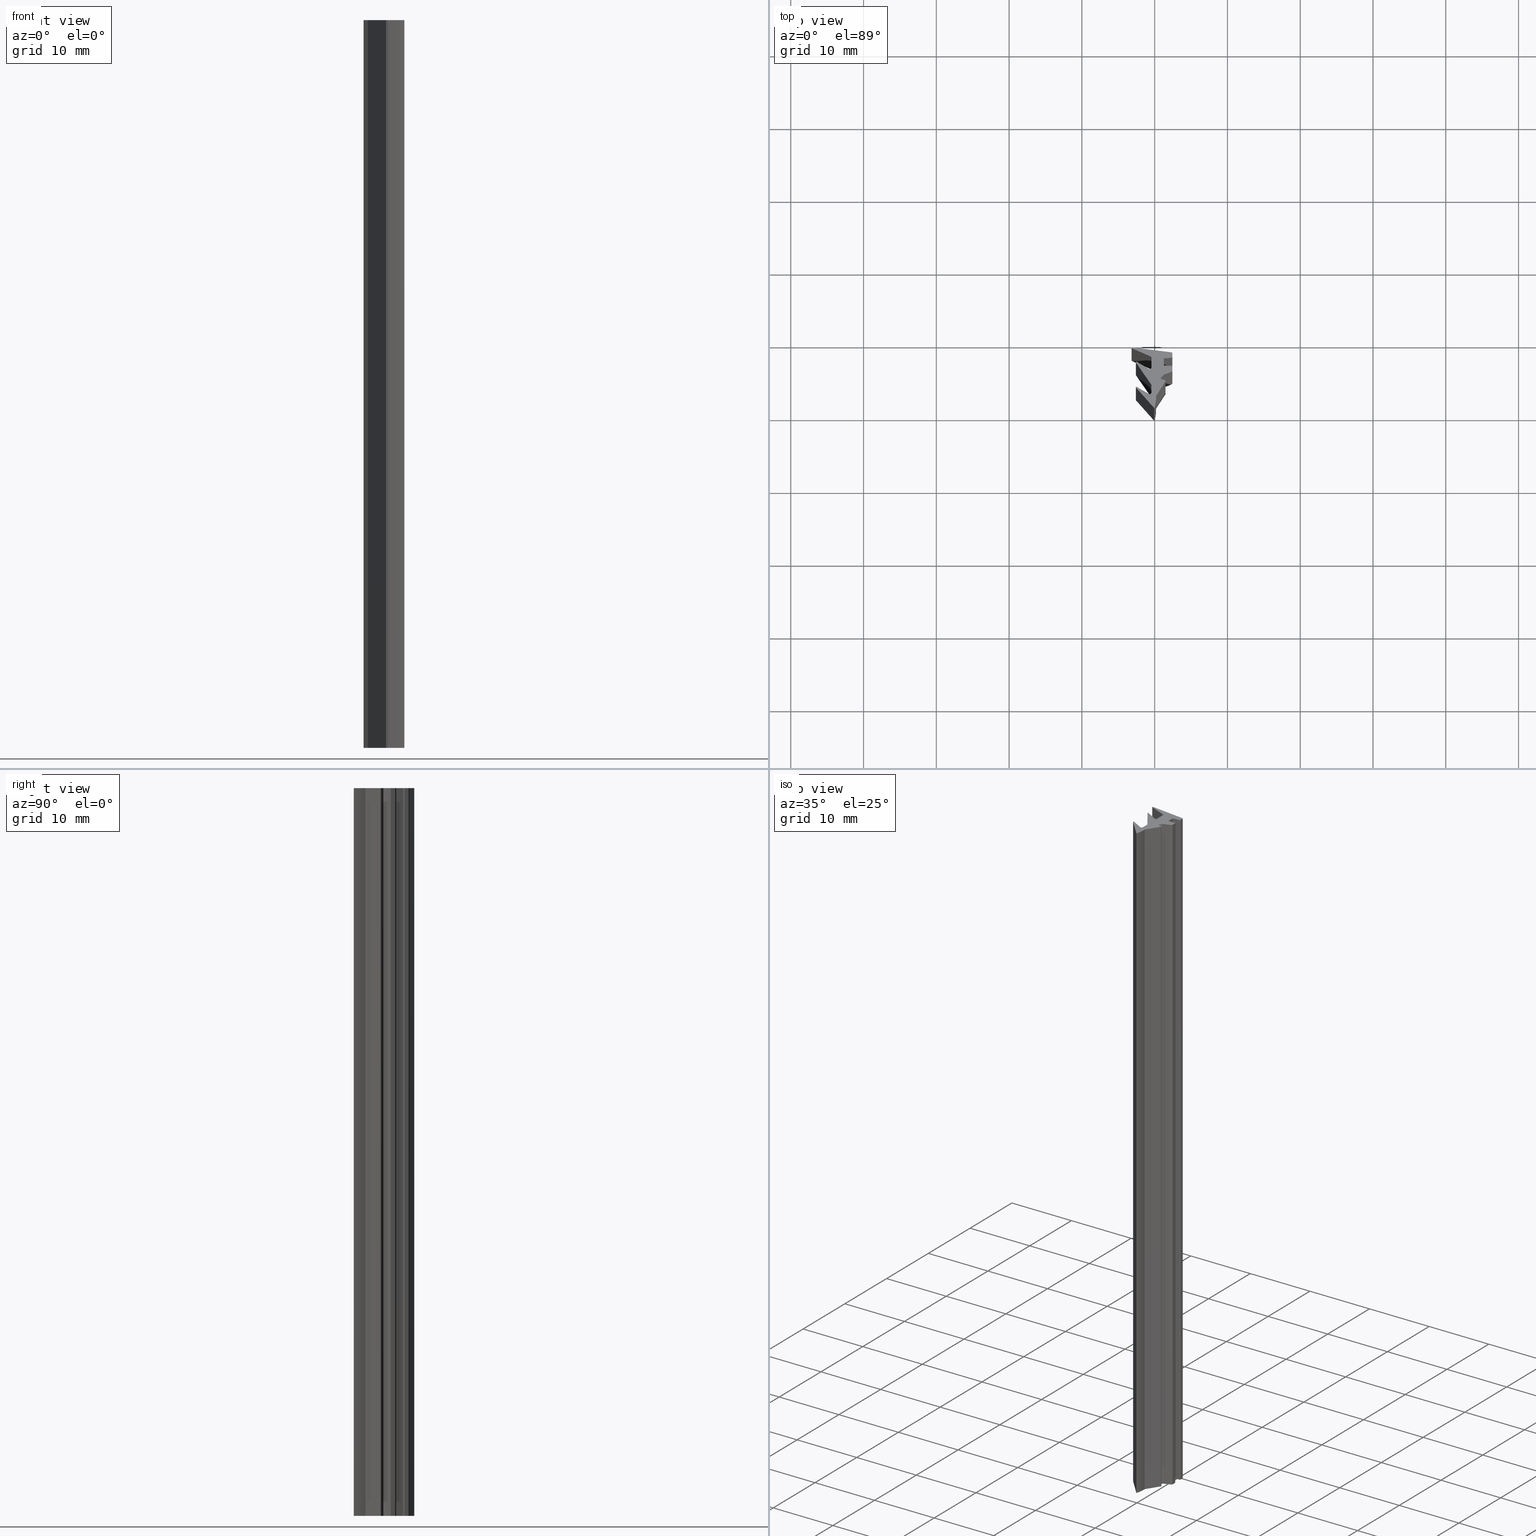
[diagram: canonical four-view strip — front | top / right | iso, engineering-drawing reading convention]
A machine part, canonical four-view strip (front | top / right | iso — engineering-drawing reading convention). The complete STEP part file that produces these views, byte-faithful:
ISO-10303-21;
HEADER;
/****************************************************************
 * Generated by software with PDE/Lib inside                    *
 * PDElib Version v4.4, created Mon 02/23/2004                  *
 * International Technegroup Inc. (www.iti-oh.com)              *
 ****************************************************************/
FILE_DESCRIPTION(('STEP AP203'),'2;1');
FILE_NAME('21.055.00N.stp','2011-09-08T18:04:21',(''),(''),'2009.3.110','THINKDESIGN','');
FILE_SCHEMA(('CONFIG_CONTROL_DESIGN'));
ENDSEC;
DATA;
#2=CARTESIAN_POINT('',(1.001719192064229,4.062080393543511,0.0));
#3=DIRECTION('',(0.0,0.0,-1.0));
#4=DIRECTION('',(-0.234478892111146,-0.972121211143101,0.0));
#5=AXIS2_PLACEMENT_3D('',#2,#3,#4);
#6=CYLINDRICAL_SURFACE('',#5,0.139999999999440);
#7=CARTESIAN_POINT('',(0.968892147168845,3.925983423983780,0.0));
#8=VERTEX_POINT('',#7);
#9=CARTESIAN_POINT('',(0.904405886683890,4.162728893759777,0.0));
#10=VERTEX_POINT('',#9);
#11=CARTESIAN_POINT('',(1.001719192064229,4.062080393543511,0.0));
#12=DIRECTION('',(0.0,0.0,-1.0));
#13=DIRECTION('',(1.0,0.0,0.0));
#14=AXIS2_PLACEMENT_3D('',#11,#12,#13);
#15=CIRCLE('',#14,0.139999999999440);
#16=EDGE_CURVE('',#8,#10,#15,.T.);
#17=ORIENTED_EDGE('',*,*,#16,.T.);
#18=CARTESIAN_POINT('',(0.904405886683890,4.162728893759777,100.0));
#19=VERTEX_POINT('',#18);
#20=CARTESIAN_POINT('',(0.904405886683890,4.162728893759777,0.0));
#21=DIRECTION('',(0.0,0.0,1.0));
#22=VECTOR('',#21,100.0);
#23=LINE('',#20,#22);
#24=EDGE_CURVE('',#10,#19,#23,.T.);
#25=ORIENTED_EDGE('',*,*,#24,.T.);
#26=CARTESIAN_POINT('',(0.968892147168845,3.925983423983780,100.0));
#27=VERTEX_POINT('',#26);
#28=CARTESIAN_POINT('',(1.001719192064229,4.062080393543511,100.0));
#29=DIRECTION('',(0.0,0.0,-1.0));
#30=DIRECTION('',(1.0,0.0,0.0));
#31=AXIS2_PLACEMENT_3D('',#28,#29,#30);
#32=CIRCLE('',#31,0.139999999999440);
#33=EDGE_CURVE('',#27,#19,#32,.T.);
#34=ORIENTED_EDGE('',*,*,#33,.F.);
#35=CARTESIAN_POINT('',(0.968892147168845,3.925983423983780,0.0));
#36=DIRECTION('',(0.0,0.0,1.0));
#37=VECTOR('',#36,100.0);
#38=LINE('',#35,#37);
#39=EDGE_CURVE('',#8,#27,#38,.T.);
#40=ORIENTED_EDGE('',*,*,#39,.F.);
#41=EDGE_LOOP('',(#17,#25,#34,#40));
#42=FACE_OUTER_BOUND('',#41,.T.);
#43=ADVANCED_FACE('',(#42),#6,.F.);
#44=CARTESIAN_POINT('',(-2.493065046091033,7.676640507121192,0.0));
#45=DIRECTION('',(0.0,0.0,1.0));
#46=DIRECTION('',(1.0,0.0,0.0));
#47=AXIS2_PLACEMENT_3D('',#44,#45,#46);
#48=CYLINDRICAL_SURFACE('',#47,4.887779001302095);
#49=CARTESIAN_POINT('',(1.272140242813293,4.559973585878652,0.0));
#50=VERTEX_POINT('',#49);
#51=CARTESIAN_POINT('',(-2.493065046091033,7.676640507121192,0.0));
#52=DIRECTION('',(0.0,0.0,1.0));
#53=DIRECTION('',(1.0,0.0,0.0));
#54=AXIS2_PLACEMENT_3D('',#51,#52,#53);
#55=CIRCLE('',#54,4.887779001302095);
#56=EDGE_CURVE('',#10,#50,#55,.T.);
#57=ORIENTED_EDGE('',*,*,#56,.T.);
#58=CARTESIAN_POINT('',(1.272140242813293,4.559973585878652,100.0));
#59=VERTEX_POINT('',#58);
#60=CARTESIAN_POINT('',(1.272140242813293,4.559973585878652,0.0));
#61=DIRECTION('',(0.0,0.0,1.0));
#62=VECTOR('',#61,100.0);
#63=LINE('',#60,#62);
#64=EDGE_CURVE('',#50,#59,#63,.T.);
#65=ORIENTED_EDGE('',*,*,#64,.T.);
#66=CARTESIAN_POINT('',(-2.493065046091033,7.676640507121192,100.0));
#67=DIRECTION('',(0.0,0.0,1.0));
#68=DIRECTION('',(1.0,0.0,0.0));
#69=AXIS2_PLACEMENT_3D('',#66,#67,#68);
#70=CIRCLE('',#69,4.887779001302095);
#71=EDGE_CURVE('',#19,#59,#70,.T.);
#72=ORIENTED_EDGE('',*,*,#71,.F.);
#73=ORIENTED_EDGE('',*,*,#24,.F.);
#74=EDGE_LOOP('',(#57,#65,#72,#73));
#75=FACE_OUTER_BOUND('',#74,.T.);
#76=ADVANCED_FACE('',(#75),#48,.T.);
#77=CARTESIAN_POINT('',(-0.615026702402702,11.178847048970965,0.0));
#78=DIRECTION('',(0.0,0.0,1.0));
#79=DIRECTION('',(1.0,0.0,0.0));
#80=AXIS2_PLACEMENT_3D('',#77,#78,#79);
#81=CYLINDRICAL_SURFACE('',#80,6.882651015382542);
#82=CARTESIAN_POINT('',(2.351141311599349,4.968152054668281,0.0));
#83=VERTEX_POINT('',#82);
#84=CARTESIAN_POINT('',(-0.615026702402702,11.178847048970965,0.0));
#85=DIRECTION('',(0.0,0.0,1.0));
#86=DIRECTION('',(1.0,0.0,0.0));
#87=AXIS2_PLACEMENT_3D('',#84,#85,#86);
#88=CIRCLE('',#87,6.882651015382542);
#89=EDGE_CURVE('',#50,#83,#88,.T.);
#90=ORIENTED_EDGE('',*,*,#89,.T.);
#91=CARTESIAN_POINT('',(2.351141311599349,4.968152054668281,100.0));
#92=VERTEX_POINT('',#91);
#93=CARTESIAN_POINT('',(2.351141311599349,4.968152054668281,0.0));
#94=DIRECTION('',(0.0,0.0,1.0));
#95=VECTOR('',#94,100.0);
#96=LINE('',#93,#95);
#97=EDGE_CURVE('',#83,#92,#96,.T.);
#98=ORIENTED_EDGE('',*,*,#97,.T.);
#99=CARTESIAN_POINT('',(-0.615026702402702,11.178847048970965,100.0));
#100=DIRECTION('',(0.0,0.0,1.0));
#101=DIRECTION('',(1.0,0.0,0.0));
#102=AXIS2_PLACEMENT_3D('',#99,#100,#101);
#103=CIRCLE('',#102,6.882651015382542);
#104=EDGE_CURVE('',#59,#92,#103,.T.);
#105=ORIENTED_EDGE('',*,*,#104,.F.);
#106=ORIENTED_EDGE('',*,*,#64,.F.);
#107=EDGE_LOOP('',(#90,#98,#105,#106));
#108=FACE_OUTER_BOUND('',#107,.T.);
#109=ADVANCED_FACE('',(#108),#81,.T.);
#110=CARTESIAN_POINT('',(2.290806489881561,5.094483797663088,0.0));
#111=DIRECTION('',(0.0,0.0,1.0));
#112=DIRECTION('',(0.430963012271300,-0.902369592824386,0.0));
#113=AXIS2_PLACEMENT_3D('',#110,#111,#112);
#114=CYLINDRICAL_SURFACE('',#113,0.139999999999440);
#115=CARTESIAN_POINT('',(2.430806489880979,5.094483797663088,0.0));
#116=VERTEX_POINT('',#115);
#117=CARTESIAN_POINT('',(2.290806489881561,5.094483797663088,0.0));
#118=DIRECTION('',(0.0,0.0,1.0));
#119=DIRECTION('',(1.0,0.0,0.0));
#120=AXIS2_PLACEMENT_3D('',#117,#118,#119);
#121=CIRCLE('',#120,0.139999999999440);
#122=EDGE_CURVE('',#83,#116,#121,.T.);
#123=ORIENTED_EDGE('',*,*,#122,.T.);
#124=CARTESIAN_POINT('',(2.430806489880979,5.094483797663088,100.0));
#125=VERTEX_POINT('',#124);
#126=CARTESIAN_POINT('',(2.430806489880979,5.094483797663088,0.0));
#127=DIRECTION('',(0.0,0.0,1.0));
#128=VECTOR('',#127,100.0);
#129=LINE('',#126,#128);
#130=EDGE_CURVE('',#116,#125,#129,.T.);
#131=ORIENTED_EDGE('',*,*,#130,.T.);
#132=CARTESIAN_POINT('',(2.290806489881561,5.094483797663088,100.0));
#133=DIRECTION('',(0.0,0.0,1.0));
#134=DIRECTION('',(1.0,0.0,0.0));
#135=AXIS2_PLACEMENT_3D('',#132,#133,#134);
#136=CIRCLE('',#135,0.139999999999440);
#137=EDGE_CURVE('',#92,#125,#136,.T.);
#138=ORIENTED_EDGE('',*,*,#137,.F.);
#139=ORIENTED_EDGE('',*,*,#97,.F.);
#140=EDGE_LOOP('',(#123,#131,#138,#139));
#141=FACE_OUTER_BOUND('',#140,.T.);
#142=ADVANCED_FACE('',(#141),#114,.T.);
#143=CARTESIAN_POINT('',(2.430806489880979,5.094483797663088,0.0));
#144=DIRECTION('',(1.0,0.0,0.0));
#145=DIRECTION('',(0.0,1.0,0.0));
#146=AXIS2_PLACEMENT_3D('',#143,#144,#145);
#147=PLANE('',#146);
#148=CARTESIAN_POINT('',(2.430806489880524,5.629802627999197,0.0));
#149=VERTEX_POINT('',#148);
#150=CARTESIAN_POINT('',(2.430806489880979,5.094483797663088,0.0));
#151=DIRECTION('',(0.0,1.0,0.0));
#152=VECTOR('',#151,0.535318830336088);
#153=LINE('',#150,#152);
#154=EDGE_CURVE('',#116,#149,#153,.T.);
#155=ORIENTED_EDGE('',*,*,#154,.T.);
#156=CARTESIAN_POINT('',(2.430806489880524,5.629802627999197,100.0));
#157=VERTEX_POINT('',#156);
#158=CARTESIAN_POINT('',(2.430806489880524,5.629802627999197,0.0));
#159=DIRECTION('',(0.0,0.0,1.0));
#160=VECTOR('',#159,100.0);
#161=LINE('',#158,#160);
#162=EDGE_CURVE('',#149,#157,#161,.T.);
#163=ORIENTED_EDGE('',*,*,#162,.T.);
#164=CARTESIAN_POINT('',(2.430806489880979,5.094483797663088,100.0));
#165=DIRECTION('',(0.0,1.0,0.0));
#166=VECTOR('',#165,0.535318830336088);
#167=LINE('',#164,#166);
#168=EDGE_CURVE('',#125,#157,#167,.T.);
#169=ORIENTED_EDGE('',*,*,#168,.F.);
#170=ORIENTED_EDGE('',*,*,#130,.F.);
#171=EDGE_LOOP('',(#155,#163,#169,#170));
#172=FACE_OUTER_BOUND('',#171,.T.);
#173=ADVANCED_FACE('',(#172),#147,.T.);
#174=CARTESIAN_POINT('',(2.288606489881204,5.629802627999197,0.0));
#175=DIRECTION('',(0.0,0.0,1.0));
#176=DIRECTION('',(1.0,0.0,0.0));
#177=AXIS2_PLACEMENT_3D('',#174,#175,#176);
#178=CYLINDRICAL_SURFACE('',#177,0.142199999999430);
#179=CARTESIAN_POINT('',(2.288606489881204,5.772002627998518,0.0));
#180=VERTEX_POINT('',#179);
#181=CARTESIAN_POINT('',(2.288606489881204,5.629802627999197,0.0));
#182=DIRECTION('',(0.0,0.0,1.0));
#183=DIRECTION('',(1.0,0.0,0.0));
#184=AXIS2_PLACEMENT_3D('',#181,#182,#183);
#185=CIRCLE('',#184,0.142199999999430);
#186=EDGE_CURVE('',#149,#180,#185,.T.);
#187=ORIENTED_EDGE('',*,*,#186,.T.);
#188=CARTESIAN_POINT('',(2.288606489881204,5.772002627998518,100.0));
#189=VERTEX_POINT('',#188);
#190=CARTESIAN_POINT('',(2.288606489881204,5.772002627998518,0.0));
#191=DIRECTION('',(0.0,0.0,1.0));
#192=VECTOR('',#191,100.0);
#193=LINE('',#190,#192);
#194=EDGE_CURVE('',#180,#189,#193,.T.);
#195=ORIENTED_EDGE('',*,*,#194,.T.);
#196=CARTESIAN_POINT('',(2.288606489881204,5.629802627999197,100.0));
#197=DIRECTION('',(0.0,0.0,1.0));
#198=DIRECTION('',(1.0,0.0,0.0));
#199=AXIS2_PLACEMENT_3D('',#196,#197,#198);
#200=CIRCLE('',#199,0.142199999999430);
#201=EDGE_CURVE('',#157,#189,#200,.T.);
#202=ORIENTED_EDGE('',*,*,#201,.F.);
#203=ORIENTED_EDGE('',*,*,#162,.F.);
#204=EDGE_LOOP('',(#187,#195,#202,#203));
#205=FACE_OUTER_BOUND('',#204,.T.);
#206=ADVANCED_FACE('',(#205),#178,.T.);
#207=CARTESIAN_POINT('',(2.288606489881204,5.772002627998518,0.0));
#208=DIRECTION('',(0.0,1.0,0.0));
#209=DIRECTION('',(-1.0,0.0,0.0));
#210=AXIS2_PLACEMENT_3D('',#207,#208,#209);
#211=PLANE('',#210);
#212=CARTESIAN_POINT('',(1.336219787783648,5.772002627997608,0.0));
#213=VERTEX_POINT('',#212);
#214=CARTESIAN_POINT('',(2.288606489881204,5.772002627998518,0.0));
#215=DIRECTION('',(-1.0,0.0,0.0));
#216=VECTOR('',#215,0.952386702097839);
#217=LINE('',#214,#216);
#218=EDGE_CURVE('',#180,#213,#217,.T.);
#219=ORIENTED_EDGE('',*,*,#218,.T.);
#220=CARTESIAN_POINT('',(1.336219787783648,5.772002627997608,100.0));
#221=VERTEX_POINT('',#220);
#222=CARTESIAN_POINT('',(1.336219787783648,5.772002627997608,0.0));
#223=DIRECTION('',(0.0,0.0,1.0));
#224=VECTOR('',#223,100.0);
#225=LINE('',#222,#224);
#226=EDGE_CURVE('',#213,#221,#225,.T.);
#227=ORIENTED_EDGE('',*,*,#226,.T.);
#228=CARTESIAN_POINT('',(2.288606489881204,5.772002627998518,100.0));
#229=DIRECTION('',(-1.0,0.0,0.0));
#230=VECTOR('',#229,0.952386702097839);
#231=LINE('',#228,#230);
#232=EDGE_CURVE('',#189,#221,#231,.T.);
#233=ORIENTED_EDGE('',*,*,#232,.F.);
#234=ORIENTED_EDGE('',*,*,#194,.F.);
#235=EDGE_LOOP('',(#219,#227,#233,#234));
#236=FACE_OUTER_BOUND('',#235,.T.);
#237=ADVANCED_FACE('',(#236),#211,.T.);
#238=CARTESIAN_POINT('',(1.336219787783648,5.843102627997723,0.0));
#239=DIRECTION('',(0.0,0.0,-1.0));
#240=DIRECTION('',(-1.960054E-015,-1.0,0.0));
#241=AXIS2_PLACEMENT_3D('',#238,#239,#240);
#242=CYLINDRICAL_SURFACE('',#241,0.071099999999716);
#243=CARTESIAN_POINT('',(1.265119787783988,5.843102627997723,0.0));
#244=VERTEX_POINT('',#243);
#245=CARTESIAN_POINT('',(1.336219787783648,5.843102627997723,0.0));
#246=DIRECTION('',(0.0,0.0,-1.0));
#247=DIRECTION('',(1.0,0.0,0.0));
#248=AXIS2_PLACEMENT_3D('',#245,#246,#247);
#249=CIRCLE('',#248,0.071099999999716);
#250=EDGE_CURVE('',#213,#244,#249,.T.);
#251=ORIENTED_EDGE('',*,*,#250,.T.);
#252=CARTESIAN_POINT('',(1.265119787783988,5.843102627997723,100.0));
#253=VERTEX_POINT('',#252);
#254=CARTESIAN_POINT('',(1.265119787783988,5.843102627997723,0.0));
#255=DIRECTION('',(0.0,0.0,1.0));
#256=VECTOR('',#255,100.0);
#257=LINE('',#254,#256);
#258=EDGE_CURVE('',#244,#253,#257,.T.);
#259=ORIENTED_EDGE('',*,*,#258,.T.);
#260=CARTESIAN_POINT('',(1.336219787783648,5.843102627997723,100.0));
#261=DIRECTION('',(0.0,0.0,-1.0));
#262=DIRECTION('',(1.0,0.0,0.0));
#263=AXIS2_PLACEMENT_3D('',#260,#261,#262);
#264=CIRCLE('',#263,0.071099999999716);
#265=EDGE_CURVE('',#221,#253,#264,.T.);
#266=ORIENTED_EDGE('',*,*,#265,.F.);
#267=ORIENTED_EDGE('',*,*,#226,.F.);
#268=EDGE_LOOP('',(#251,#259,#266,#267));
#269=FACE_OUTER_BOUND('',#268,.T.);
#270=ADVANCED_FACE('',(#269),#242,.F.);
#271=CARTESIAN_POINT('',(1.265119787783988,5.843102627997723,0.0));
#272=DIRECTION('',(1.0,0.0,0.0));
#273=DIRECTION('',(0.0,1.0,0.0));
#274=AXIS2_PLACEMENT_3D('',#271,#272,#273);
#275=PLANE('',#274);
#276=CARTESIAN_POINT('',(1.265119787783988,6.721160921344563,0.0));
#277=VERTEX_POINT('',#276);
#278=CARTESIAN_POINT('',(1.265119787783988,5.843102627997723,0.0));
#279=DIRECTION('',(0.0,1.0,0.0));
#280=VECTOR('',#279,0.878058293346944);
#281=LINE('',#278,#280);
#282=EDGE_CURVE('',#244,#277,#281,.T.);
#283=ORIENTED_EDGE('',*,*,#282,.T.);
#284=CARTESIAN_POINT('',(1.265119787783988,6.721160921344563,100.0));
#285=VERTEX_POINT('',#284);
#286=CARTESIAN_POINT('',(1.265119787783988,6.721160921344563,0.0));
#287=DIRECTION('',(0.0,0.0,1.0));
#288=VECTOR('',#287,100.0);
#289=LINE('',#286,#288);
#290=EDGE_CURVE('',#277,#285,#289,.T.);
#291=ORIENTED_EDGE('',*,*,#290,.T.);
#292=CARTESIAN_POINT('',(1.265119787783988,5.843102627997723,100.0));
#293=DIRECTION('',(0.0,1.0,0.0));
#294=VECTOR('',#293,0.878058293346944);
#295=LINE('',#292,#294);
#296=EDGE_CURVE('',#253,#285,#295,.T.);
#297=ORIENTED_EDGE('',*,*,#296,.F.);
#298=ORIENTED_EDGE('',*,*,#258,.F.);
#299=EDGE_LOOP('',(#283,#291,#297,#298));
#300=FACE_OUTER_BOUND('',#299,.T.);
#301=ADVANCED_FACE('',(#300),#275,.T.);
#302=CARTESIAN_POINT('',(1.336219787783648,6.721160921344563,0.0));
#303=DIRECTION('',(0.0,0.0,-1.0));
#304=DIRECTION('',(-1.0,1.010643E-015,0.0));
#305=AXIS2_PLACEMENT_3D('',#302,#303,#304);
#306=CYLINDRICAL_SURFACE('',#305,0.071099999999715);
#307=CARTESIAN_POINT('',(1.325025252549949,6.791374113701750,0.0));
#308=VERTEX_POINT('',#307);
#309=CARTESIAN_POINT('',(1.336219787783648,6.721160921344563,0.0));
#310=DIRECTION('',(0.0,0.0,-1.0));
#311=DIRECTION('',(1.0,0.0,0.0));
#312=AXIS2_PLACEMENT_3D('',#309,#310,#311);
#313=CIRCLE('',#312,0.071099999999715);
#314=EDGE_CURVE('',#277,#308,#313,.T.);
#315=ORIENTED_EDGE('',*,*,#314,.T.);
#316=CARTESIAN_POINT('',(1.325025252549949,6.791374113701750,100.0));
#317=VERTEX_POINT('',#316);
#318=CARTESIAN_POINT('',(1.325025252549949,6.791374113701750,0.0));
#319=DIRECTION('',(0.0,0.0,1.0));
#320=VECTOR('',#319,100.0);
#321=LINE('',#318,#320);
#322=EDGE_CURVE('',#308,#317,#321,.T.);
#323=ORIENTED_EDGE('',*,*,#322,.T.);
#324=CARTESIAN_POINT('',(1.336219787783648,6.721160921344563,100.0));
#325=DIRECTION('',(0.0,0.0,-1.0));
#326=DIRECTION('',(1.0,0.0,0.0));
#327=AXIS2_PLACEMENT_3D('',#324,#325,#326);
#328=CIRCLE('',#327,0.071099999999715);
#329=EDGE_CURVE('',#285,#317,#328,.T.);
#330=ORIENTED_EDGE('',*,*,#329,.F.);
#331=ORIENTED_EDGE('',*,*,#290,.F.);
#332=EDGE_LOOP('',(#315,#323,#330,#331));
#333=FACE_OUTER_BOUND('',#332,.T.);
#334=ADVANCED_FACE('',(#333),#306,.F.);
#335=CARTESIAN_POINT('',(1.325025252549949,6.791374113701750,0.0));
#336=DIRECTION('',(0.084886722349870,-0.996390608330235,0.0));
#337=DIRECTION('',(0.996390608330235,0.084886722349870,0.0));
#338=AXIS2_PLACEMENT_3D('',#335,#336,#337);
#339=PLANE('',#338);
#340=CARTESIAN_POINT('',(2.310995560348147,6.875373086658328,0.0));
#341=VERTEX_POINT('',#340);
#342=CARTESIAN_POINT('',(1.325025252549949,6.791374113701750,0.0));
#343=DIRECTION('',(0.996390608330210,0.084886722350166,0.0));
#344=VECTOR('',#343,0.989541952277943);
#345=LINE('',#342,#344);
#346=EDGE_CURVE('',#308,#341,#345,.T.);
#347=ORIENTED_EDGE('',*,*,#346,.T.);
#348=CARTESIAN_POINT('',(2.310995560348147,6.875373086658328,100.0));
#349=VERTEX_POINT('',#348);
#350=CARTESIAN_POINT('',(2.310995560348147,6.875373086658328,0.0));
#351=DIRECTION('',(0.0,0.0,1.0));
#352=VECTOR('',#351,100.0);
#353=LINE('',#350,#352);
#354=EDGE_CURVE('',#341,#349,#353,.T.);
#355=ORIENTED_EDGE('',*,*,#354,.T.);
#356=CARTESIAN_POINT('',(1.325025252549949,6.791374113701750,100.0));
#357=DIRECTION('',(0.996390608330210,0.084886722350166,0.0));
#358=VECTOR('',#357,0.989541952277943);
#359=LINE('',#356,#358);
#360=EDGE_CURVE('',#317,#349,#359,.T.);
#361=ORIENTED_EDGE('',*,*,#360,.F.);
#362=ORIENTED_EDGE('',*,*,#322,.F.);
#363=EDGE_LOOP('',(#347,#355,#361,#362));
#364=FACE_OUTER_BOUND('',#363,.T.);
#365=ADVANCED_FACE('',(#364),#339,.T.);
#366=CARTESIAN_POINT('',(2.288606489881204,7.015799471370883,0.0));
#367=DIRECTION('',(0.0,0.0,1.0));
#368=DIRECTION('',(0.157447752933772,-0.987527318658125,0.0));
#369=AXIS2_PLACEMENT_3D('',#366,#367,#368);
#370=CYLINDRICAL_SURFACE('',#369,0.142199999999430);
#371=CARTESIAN_POINT('',(2.430806489880979,7.015799471370883,0.0));
#372=VERTEX_POINT('',#371);
#373=CARTESIAN_POINT('',(2.288606489881204,7.015799471370883,0.0));
#374=DIRECTION('',(0.0,0.0,1.0));
#375=DIRECTION('',(1.0,0.0,0.0));
#376=AXIS2_PLACEMENT_3D('',#373,#374,#375);
#377=CIRCLE('',#376,0.142199999999430);
#378=EDGE_CURVE('',#341,#372,#377,.T.);
#379=ORIENTED_EDGE('',*,*,#378,.T.);
#380=CARTESIAN_POINT('',(2.430806489880979,7.015799471370883,100.0));
#381=VERTEX_POINT('',#380);
#382=CARTESIAN_POINT('',(2.430806489880979,7.015799471370883,0.0));
#383=DIRECTION('',(0.0,0.0,1.0));
#384=VECTOR('',#383,100.0);
#385=LINE('',#382,#384);
#386=EDGE_CURVE('',#372,#381,#385,.T.);
#387=ORIENTED_EDGE('',*,*,#386,.T.);
#388=CARTESIAN_POINT('',(2.288606489881204,7.015799471370883,100.0));
#389=DIRECTION('',(0.0,0.0,1.0));
#390=DIRECTION('',(1.0,0.0,0.0));
#391=AXIS2_PLACEMENT_3D('',#388,#389,#390);
#392=CIRCLE('',#391,0.142199999999430);
#393=EDGE_CURVE('',#349,#381,#392,.T.);
#394=ORIENTED_EDGE('',*,*,#393,.F.);
#395=ORIENTED_EDGE('',*,*,#354,.F.);
#396=EDGE_LOOP('',(#379,#387,#394,#395));
#397=FACE_OUTER_BOUND('',#396,.T.);
#398=ADVANCED_FACE('',(#397),#370,.T.);
#399=CARTESIAN_POINT('',(2.430806489880979,7.015799471370883,0.0));
#400=DIRECTION('',(1.0,0.0,0.0));
#401=DIRECTION('',(0.0,1.0,0.0));
#402=AXIS2_PLACEMENT_3D('',#399,#400,#401);
#403=PLANE('',#402);
#404=CARTESIAN_POINT('',(2.430806489880524,7.479009992664032,0.0));
#405=VERTEX_POINT('',#404);
#406=CARTESIAN_POINT('',(2.430806489880979,7.015799471370883,0.0));
#407=DIRECTION('',(0.0,1.0,0.0));
#408=VECTOR('',#407,0.463210521293123);
#409=LINE('',#406,#408);
#410=EDGE_CURVE('',#372,#405,#409,.T.);
#411=ORIENTED_EDGE('',*,*,#410,.T.);
#412=CARTESIAN_POINT('',(2.430806489880524,7.479009992664032,100.0));
#413=VERTEX_POINT('',#412);
#414=CARTESIAN_POINT('',(2.430806489880524,7.479009992664032,0.0));
#415=DIRECTION('',(0.0,0.0,1.0));
#416=VECTOR('',#415,100.0);
#417=LINE('',#414,#416);
#418=EDGE_CURVE('',#405,#413,#417,.T.);
#419=ORIENTED_EDGE('',*,*,#418,.T.);
#420=CARTESIAN_POINT('',(2.430806489880979,7.015799471370883,100.0));
#421=DIRECTION('',(0.0,1.0,0.0));
#422=VECTOR('',#421,0.463210521293123);
#423=LINE('',#420,#422);
#424=EDGE_CURVE('',#381,#413,#423,.T.);
#425=ORIENTED_EDGE('',*,*,#424,.F.);
#426=ORIENTED_EDGE('',*,*,#386,.F.);
#427=EDGE_LOOP('',(#411,#419,#425,#426));
#428=FACE_OUTER_BOUND('',#427,.T.);
#429=ADVANCED_FACE('',(#428),#403,.T.);
#430=CARTESIAN_POINT('',(2.288606489881204,7.479009992664032,0.0));
#431=DIRECTION('',(0.0,0.0,1.0));
#432=DIRECTION('',(1.0,0.0,0.0));
#433=AXIS2_PLACEMENT_3D('',#430,#431,#432);
#434=CYLINDRICAL_SURFACE('',#433,0.142199999999433);
#435=CARTESIAN_POINT('',(2.305205762880178,7.620237837424611,0.0));
#436=VERTEX_POINT('',#435);
#437=CARTESIAN_POINT('',(2.288606489881204,7.479009992664032,0.0));
#438=DIRECTION('',(0.0,0.0,1.0));
#439=DIRECTION('',(1.0,0.0,0.0));
#440=AXIS2_PLACEMENT_3D('',#437,#438,#439);
#441=CIRCLE('',#440,0.142199999999433);
#442=EDGE_CURVE('',#405,#436,#441,.T.);
#443=ORIENTED_EDGE('',*,*,#442,.T.);
#444=CARTESIAN_POINT('',(2.305205762880178,7.620237837424611,100.0));
#445=VERTEX_POINT('',#444);
#446=CARTESIAN_POINT('',(2.305205762880178,7.620237837424611,0.0));
#447=DIRECTION('',(0.0,0.0,1.0));
#448=VECTOR('',#447,100.0);
#449=LINE('',#446,#448);
#450=EDGE_CURVE('',#436,#445,#449,.T.);
#451=ORIENTED_EDGE('',*,*,#450,.T.);
#452=CARTESIAN_POINT('',(2.288606489881204,7.479009992664032,100.0));
#453=DIRECTION('',(0.0,0.0,1.0));
#454=DIRECTION('',(1.0,0.0,0.0));
#455=AXIS2_PLACEMENT_3D('',#452,#453,#454);
#456=CIRCLE('',#455,0.142199999999433);
#457=EDGE_CURVE('',#413,#445,#456,.T.);
#458=ORIENTED_EDGE('',*,*,#457,.F.);
#459=ORIENTED_EDGE('',*,*,#418,.F.);
#460=EDGE_LOOP('',(#443,#451,#458,#459));
#461=FACE_OUTER_BOUND('',#460,.T.);
#462=ADVANCED_FACE('',(#461),#434,.T.);
#463=CARTESIAN_POINT('',(2.305205762880178,7.620237837424611,0.0));
#464=DIRECTION('',(0.125261887887571,0.992123711763226,0.0));
#465=DIRECTION('',(-0.992123711763226,0.125261887887571,0.0));
#466=AXIS2_PLACEMENT_3D('',#463,#464,#465);
#467=PLANE('',#466);
#468=CARTESIAN_POINT('',(-3.085766503641480,8.300882151886071,0.0));
#469=VERTEX_POINT('',#468);
#470=CARTESIAN_POINT('',(2.305205762880178,7.620237837424611,0.0));
#471=DIRECTION('',(-0.992123711763219,0.125261887887631,0.0));
#472=VECTOR('',#471,5.433770206883430);
#473=LINE('',#470,#472);
#474=EDGE_CURVE('',#436,#469,#473,.T.);
#475=ORIENTED_EDGE('',*,*,#474,.T.);
#476=CARTESIAN_POINT('',(-3.085766503641480,8.300882151886071,100.0));
#477=VERTEX_POINT('',#476);
#478=CARTESIAN_POINT('',(-3.085766503641480,8.300882151886071,0.0));
#479=DIRECTION('',(0.0,0.0,1.0));
#480=VECTOR('',#479,100.0);
#481=LINE('',#478,#480);
#482=EDGE_CURVE('',#469,#477,#481,.T.);
#483=ORIENTED_EDGE('',*,*,#482,.T.);
#484=CARTESIAN_POINT('',(2.305205762880178,7.620237837424611,100.0));
#485=DIRECTION('',(-0.992123711763219,0.125261887887631,0.0));
#486=VECTOR('',#485,5.433770206883430);
#487=LINE('',#484,#486);
#488=EDGE_CURVE('',#445,#477,#487,.T.);
#489=ORIENTED_EDGE('',*,*,#488,.F.);
#490=ORIENTED_EDGE('',*,*,#450,.F.);
#491=EDGE_LOOP('',(#475,#483,#489,#490));
#492=FACE_OUTER_BOUND('',#491,.T.);
#493=ADVANCED_FACE('',(#492),#467,.T.);
#494=CARTESIAN_POINT('',(-3.094066140140967,8.230268229505782,0.0));
#495=DIRECTION('',(0.0,0.0,1.0));
#496=DIRECTION('',(1.0,0.0,0.0));
#497=AXIS2_PLACEMENT_3D('',#494,#495,#496);
#498=CYLINDRICAL_SURFACE('',#497,0.071099999999714);
#499=CARTESIAN_POINT('',(-3.122255835029137,8.164995332358558,0.0));
#500=VERTEX_POINT('',#499);
#501=CARTESIAN_POINT('',(-3.094066140140967,8.230268229505782,0.0));
#502=DIRECTION('',(0.0,0.0,1.0));
#503=DIRECTION('',(1.0,0.0,0.0));
#504=AXIS2_PLACEMENT_3D('',#501,#502,#503);
#505=CIRCLE('',#504,0.071099999999714);
#506=EDGE_CURVE('',#469,#500,#505,.T.);
#507=ORIENTED_EDGE('',*,*,#506,.T.);
#508=CARTESIAN_POINT('',(-3.122255835029137,8.164995332358558,100.0));
#509=VERTEX_POINT('',#508);
#510=CARTESIAN_POINT('',(-3.122255835029137,8.164995332358558,0.0));
#511=DIRECTION('',(0.0,0.0,1.0));
#512=VECTOR('',#511,100.0);
#513=LINE('',#510,#512);
#514=EDGE_CURVE('',#500,#509,#513,.T.);
#515=ORIENTED_EDGE('',*,*,#514,.T.);
#516=CARTESIAN_POINT('',(-3.094066140140967,8.230268229505782,100.0));
#517=DIRECTION('',(0.0,0.0,1.0));
#518=DIRECTION('',(1.0,0.0,0.0));
#519=AXIS2_PLACEMENT_3D('',#516,#517,#518);
#520=CIRCLE('',#519,0.071099999999714);
#521=EDGE_CURVE('',#477,#509,#520,.T.);
#522=ORIENTED_EDGE('',*,*,#521,.F.);
#523=ORIENTED_EDGE('',*,*,#482,.F.);
#524=EDGE_LOOP('',(#507,#515,#522,#523));
#525=FACE_OUTER_BOUND('',#524,.T.);
#526=ADVANCED_FACE('',(#525),#498,.T.);
#527=CARTESIAN_POINT('',(-3.122255835029137,8.164995332358558,0.0));
#528=DIRECTION('',(-0.396479534292955,-0.918043560451704,0.0));
#529=DIRECTION('',(0.918043560451704,-0.396479534292955,0.0));
#530=AXIS2_PLACEMENT_3D('',#527,#528,#529);
#531=PLANE('',#530);
#532=CARTESIAN_POINT('',(-0.584047430339979,7.068808038440693,0.0));
#533=VERTEX_POINT('',#532);
#534=CARTESIAN_POINT('',(-3.122255835029137,8.164995332358558,0.0));
#535=DIRECTION('',(0.918043560451679,-0.396479534293014,0.0));
#536=VECTOR('',#535,2.764801708798919);
#537=LINE('',#534,#536);
#538=EDGE_CURVE('',#500,#533,#537,.T.);
#539=ORIENTED_EDGE('',*,*,#538,.T.);
#540=CARTESIAN_POINT('',(-0.584047430339979,7.068808038440693,100.0));
#541=VERTEX_POINT('',#540);
#542=CARTESIAN_POINT('',(-0.584047430339979,7.068808038440693,0.0));
#543=DIRECTION('',(0.0,0.0,1.0));
#544=VECTOR('',#543,100.0);
#545=LINE('',#542,#544);
#546=EDGE_CURVE('',#533,#541,#545,.T.);
#547=ORIENTED_EDGE('',*,*,#546,.T.);
#548=CARTESIAN_POINT('',(-3.122255835029137,8.164995332358558,100.0));
#549=DIRECTION('',(0.918043560451679,-0.396479534293014,0.0));
#550=VECTOR('',#549,2.764801708798919);
#551=LINE('',#548,#550);
#552=EDGE_CURVE('',#509,#541,#551,.T.);
#553=ORIENTED_EDGE('',*,*,#552,.F.);
#554=ORIENTED_EDGE('',*,*,#514,.F.);
#555=EDGE_LOOP('',(#539,#547,#553,#554));
#556=FACE_OUTER_BOUND('',#555,.T.);
#557=ADVANCED_FACE('',(#556),#531,.T.);
#558=CARTESIAN_POINT('',(-0.668616515004487,6.872989346997201,0.0));
#559=DIRECTION('',(0.0,0.0,-1.0));
#560=DIRECTION('',(0.396479534293017,0.918043560451677,0.0));
#561=AXIS2_PLACEMENT_3D('',#558,#559,#560);
#562=CYLINDRICAL_SURFACE('',#561,0.213299999999147);
#563=CARTESIAN_POINT('',(-0.455316515005507,6.872989346997201,0.0));
#564=VERTEX_POINT('',#563);
#565=CARTESIAN_POINT('',(-0.668616515004487,6.872989346997201,0.0));
#566=DIRECTION('',(0.0,0.0,-1.0));
#567=DIRECTION('',(1.0,0.0,0.0));
#568=AXIS2_PLACEMENT_3D('',#565,#566,#567);
#569=CIRCLE('',#568,0.213299999999147);
#570=EDGE_CURVE('',#533,#564,#569,.T.);
#571=ORIENTED_EDGE('',*,*,#570,.T.);
#572=CARTESIAN_POINT('',(-0.455316515005507,6.872989346997201,100.0));
#573=VERTEX_POINT('',#572);
#574=CARTESIAN_POINT('',(-0.455316515005507,6.872989346997201,0.0));
#575=DIRECTION('',(0.0,0.0,1.0));
#576=VECTOR('',#575,100.0);
#577=LINE('',#574,#576);
#578=EDGE_CURVE('',#564,#573,#577,.T.);
#579=ORIENTED_EDGE('',*,*,#578,.T.);
#580=CARTESIAN_POINT('',(-0.668616515004487,6.872989346997201,100.0));
#581=DIRECTION('',(0.0,0.0,-1.0));
#582=DIRECTION('',(1.0,0.0,0.0));
#583=AXIS2_PLACEMENT_3D('',#580,#581,#582);
#584=CIRCLE('',#583,0.213299999999147);
#585=EDGE_CURVE('',#541,#573,#584,.T.);
#586=ORIENTED_EDGE('',*,*,#585,.F.);
#587=ORIENTED_EDGE('',*,*,#546,.F.);
#588=EDGE_LOOP('',(#571,#579,#586,#587));
#589=FACE_OUTER_BOUND('',#588,.T.);
#590=ADVANCED_FACE('',(#589),#562,.F.);
#591=CARTESIAN_POINT('',(-0.455316515005507,6.872989346997201,0.0));
#592=DIRECTION('',(-1.0,0.0,0.0));
#593=DIRECTION('',(0.0,-1.0,0.0));
#594=AXIS2_PLACEMENT_3D('',#591,#592,#593);
#595=PLANE('',#594);
#596=CARTESIAN_POINT('',(-0.455316515005507,5.517455236282331,0.0));
#597=VERTEX_POINT('',#596);
#598=CARTESIAN_POINT('',(-0.455316515005507,6.872989346997201,0.0));
#599=DIRECTION('',(0.0,-1.0,0.0));
#600=VECTOR('',#599,1.355534110715529);
#601=LINE('',#598,#600);
#602=EDGE_CURVE('',#564,#597,#601,.T.);
#603=ORIENTED_EDGE('',*,*,#602,.T.);
#604=CARTESIAN_POINT('',(-0.455316515005507,5.517455236282331,100.0));
#605=VERTEX_POINT('',#604);
#606=CARTESIAN_POINT('',(-0.455316515005507,5.517455236282331,0.0));
#607=DIRECTION('',(0.0,0.0,1.0));
#608=VECTOR('',#607,100.0);
#609=LINE('',#606,#608);
#610=EDGE_CURVE('',#597,#605,#609,.T.);
#611=ORIENTED_EDGE('',*,*,#610,.T.);
#612=CARTESIAN_POINT('',(-0.455316515005507,6.872989346997201,100.0));
#613=DIRECTION('',(0.0,-1.0,0.0));
#614=VECTOR('',#613,1.355534110715529);
#615=LINE('',#612,#614);
#616=EDGE_CURVE('',#573,#605,#615,.T.);
#617=ORIENTED_EDGE('',*,*,#616,.F.);
#618=ORIENTED_EDGE('',*,*,#578,.F.);
#619=EDGE_LOOP('',(#603,#611,#617,#618));
#620=FACE_OUTER_BOUND('',#619,.T.);
#621=ADVANCED_FACE('',(#620),#595,.T.);
#622=CARTESIAN_POINT('',(-0.668616515004487,5.517455236282331,0.0));
#623=DIRECTION('',(0.0,0.0,-1.0));
#624=DIRECTION('',(1.0,0.0,0.0));
#625=AXIS2_PLACEMENT_3D('',#622,#623,#624);
#626=CYLINDRICAL_SURFACE('',#625,0.213299999999146);
#627=CARTESIAN_POINT('',(-0.775266515004205,5.332732017655872,0.0));
#628=VERTEX_POINT('',#627);
#629=CARTESIAN_POINT('',(-0.668616515004487,5.517455236282331,0.0));
#630=DIRECTION('',(0.0,0.0,-1.0));
#631=DIRECTION('',(1.0,0.0,0.0));
#632=AXIS2_PLACEMENT_3D('',#629,#630,#631);
#633=CIRCLE('',#632,0.213299999999146);
#634=EDGE_CURVE('',#597,#628,#633,.T.);
#635=ORIENTED_EDGE('',*,*,#634,.T.);
#636=CARTESIAN_POINT('',(-0.775266515004205,5.332732017655872,100.0));
#637=VERTEX_POINT('',#636);
#638=CARTESIAN_POINT('',(-0.775266515004205,5.332732017655872,0.0));
#639=DIRECTION('',(0.0,0.0,1.0));
#640=VECTOR('',#639,100.0);
#641=LINE('',#638,#640);
#642=EDGE_CURVE('',#628,#637,#641,.T.);
#643=ORIENTED_EDGE('',*,*,#642,.T.);
#644=CARTESIAN_POINT('',(-0.668616515004487,5.517455236282331,100.0));
#645=DIRECTION('',(0.0,0.0,-1.0));
#646=DIRECTION('',(1.0,0.0,0.0));
#647=AXIS2_PLACEMENT_3D('',#644,#645,#646);
#648=CIRCLE('',#647,0.213299999999146);
#649=EDGE_CURVE('',#605,#637,#648,.T.);
#650=ORIENTED_EDGE('',*,*,#649,.F.);
#651=ORIENTED_EDGE('',*,*,#610,.F.);
#652=EDGE_LOOP('',(#635,#643,#650,#651));
#653=FACE_OUTER_BOUND('',#652,.T.);
#654=ADVANCED_FACE('',(#653),#626,.F.);
#655=CARTESIAN_POINT('',(-0.775266515004205,5.332732017655872,0.0));
#656=DIRECTION('',(0.500000000000061,0.866025403784403,0.0));
#657=DIRECTION('',(-0.866025403784403,0.500000000000061,0.0));
#658=AXIS2_PLACEMENT_3D('',#655,#656,#657);
#659=PLANE('',#658);
#660=CARTESIAN_POINT('',(-2.477878518688158,6.315735516308450,0.0));
#661=VERTEX_POINT('',#660);
#662=CARTESIAN_POINT('',(-0.775266515004205,5.332732017655872,0.0));
#663=DIRECTION('',(-0.866025403784437,0.500000000000002,0.0));
#664=VECTOR('',#663,1.966006997305076);
#665=LINE('',#662,#664);
#666=EDGE_CURVE('',#628,#661,#665,.T.);
#667=ORIENTED_EDGE('',*,*,#666,.T.);
#668=CARTESIAN_POINT('',(-2.477878518688158,6.315735516308450,100.0));
#669=VERTEX_POINT('',#668);
#670=CARTESIAN_POINT('',(-2.477878518688158,6.315735516308450,0.0));
#671=DIRECTION('',(0.0,0.0,1.0));
#672=VECTOR('',#671,100.0);
#673=LINE('',#670,#672);
#674=EDGE_CURVE('',#661,#669,#673,.T.);
#675=ORIENTED_EDGE('',*,*,#674,.T.);
#676=CARTESIAN_POINT('',(-0.775266515004205,5.332732017655872,100.0));
#677=DIRECTION('',(-0.866025403784437,0.500000000000002,0.0));
#678=VECTOR('',#677,1.966006997305076);
#679=LINE('',#676,#678);
#680=EDGE_CURVE('',#637,#669,#679,.T.);
#681=ORIENTED_EDGE('',*,*,#680,.F.);
#682=ORIENTED_EDGE('',*,*,#642,.F.);
#683=EDGE_LOOP('',(#667,#675,#681,#682));
#684=FACE_OUTER_BOUND('',#683,.T.);
#685=ADVANCED_FACE('',(#684),#659,.T.);
#686=CARTESIAN_POINT('',(-2.513428518688215,6.254161110099631,0.0));
#687=DIRECTION('',(0.0,0.0,1.0));
#688=DIRECTION('',(1.0,0.0,0.0));
#689=AXIS2_PLACEMENT_3D('',#686,#687,#688);
#690=CYLINDRICAL_SURFACE('',#689,0.071099999999715);
#691=CARTESIAN_POINT('',(-2.568957043376031,6.209756234849010,0.0));
#692=VERTEX_POINT('',#691);
#693=CARTESIAN_POINT('',(-2.513428518688215,6.254161110099631,0.0));
#694=DIRECTION('',(0.0,0.0,1.0));
#695=DIRECTION('',(1.0,0.0,0.0));
#696=AXIS2_PLACEMENT_3D('',#693,#694,#695);
#697=CIRCLE('',#696,0.071099999999715);
#698=EDGE_CURVE('',#661,#692,#697,.T.);
#699=ORIENTED_EDGE('',*,*,#698,.T.);
#700=CARTESIAN_POINT('',(-2.568957043376031,6.209756234849010,100.0));
#701=VERTEX_POINT('',#700);
#702=CARTESIAN_POINT('',(-2.568957043376031,6.209756234849010,0.0));
#703=DIRECTION('',(0.0,0.0,1.0));
#704=VECTOR('',#703,100.0);
#705=LINE('',#702,#704);
#706=EDGE_CURVE('',#692,#701,#705,.T.);
#707=ORIENTED_EDGE('',*,*,#706,.T.);
#708=CARTESIAN_POINT('',(-2.513428518688215,6.254161110099631,100.0));
#709=DIRECTION('',(0.0,0.0,1.0));
#710=DIRECTION('',(1.0,0.0,0.0));
#711=AXIS2_PLACEMENT_3D('',#708,#709,#710);
#712=CIRCLE('',#711,0.071099999999715);
#713=EDGE_CURVE('',#669,#701,#712,.T.);
#714=ORIENTED_EDGE('',*,*,#713,.F.);
#715=ORIENTED_EDGE('',*,*,#674,.F.);
#716=EDGE_LOOP('',(#699,#707,#714,#715));
#717=FACE_OUTER_BOUND('',#716,.T.);
#718=ADVANCED_FACE('',(#717),#690,.T.);
#719=CARTESIAN_POINT('',(-2.568957043376031,6.209756234849010,0.0));
#720=DIRECTION('',(-0.822115594193941,-0.569320603687538,0.0));
#721=DIRECTION('',(0.569320603687538,-0.822115594193941,0.0));
#722=AXIS2_PLACEMENT_3D('',#719,#720,#721);
#723=PLANE('',#722);
#724=CARTESIAN_POINT('',(-0.502030940941040,3.225054522225037,0.0));
#725=VERTEX_POINT('',#724);
#726=CARTESIAN_POINT('',(-2.568957043376031,6.209756234849010,0.0));
#727=DIRECTION('',(0.569320603687505,-0.822115594193964,0.0));
#728=VECTOR('',#727,3.630513438381703);
#729=LINE('',#726,#728);
#730=EDGE_CURVE('',#692,#725,#729,.T.);
#731=ORIENTED_EDGE('',*,*,#730,.T.);
#732=CARTESIAN_POINT('',(-0.502030940941040,3.225054522225037,100.0));
#733=VERTEX_POINT('',#732);
#734=CARTESIAN_POINT('',(-0.502030940941040,3.225054522225037,0.0));
#735=DIRECTION('',(0.0,0.0,1.0));
#736=VECTOR('',#735,100.0);
#737=LINE('',#734,#736);
#738=EDGE_CURVE('',#725,#733,#737,.T.);
#739=ORIENTED_EDGE('',*,*,#738,.T.);
#740=CARTESIAN_POINT('',(-2.568957043376031,6.209756234849010,100.0));
#741=DIRECTION('',(0.569320603687505,-0.822115594193964,0.0));
#742=VECTOR('',#741,3.630513438381703);
#743=LINE('',#740,#742);
#744=EDGE_CURVE('',#701,#733,#743,.T.);
#745=ORIENTED_EDGE('',*,*,#744,.F.);
#746=ORIENTED_EDGE('',*,*,#706,.F.);
#747=EDGE_LOOP('',(#731,#739,#745,#746));
#748=FACE_OUTER_BOUND('',#747,.T.);
#749=ADVANCED_FACE('',(#748),#723,.T.);
#750=CARTESIAN_POINT('',(-0.668616515004487,3.091839896475904,0.0));
#751=DIRECTION('',(0.0,0.0,-1.0));
#752=DIRECTION('',(0.780991908411943,0.624541142756081,0.0));
#753=AXIS2_PLACEMENT_3D('',#750,#751,#752);
#754=CYLINDRICAL_SURFACE('',#753,0.213299999999148);
#755=CARTESIAN_POINT('',(-0.455316515005507,3.091839896475904,0.0));
#756=VERTEX_POINT('',#755);
#757=CARTESIAN_POINT('',(-0.668616515004487,3.091839896475904,0.0));
#758=DIRECTION('',(0.0,0.0,-1.0));
#759=DIRECTION('',(1.0,0.0,0.0));
#760=AXIS2_PLACEMENT_3D('',#757,#758,#759);
#761=CIRCLE('',#760,0.213299999999148);
#762=EDGE_CURVE('',#725,#756,#761,.T.);
#763=ORIENTED_EDGE('',*,*,#762,.T.);
#764=CARTESIAN_POINT('',(-0.455316515005507,3.091839896475904,100.0));
#765=VERTEX_POINT('',#764);
#766=CARTESIAN_POINT('',(-0.455316515005507,3.091839896475904,0.0));
#767=DIRECTION('',(0.0,0.0,1.0));
#768=VECTOR('',#767,100.0);
#769=LINE('',#766,#768);
#770=EDGE_CURVE('',#756,#765,#769,.T.);
#771=ORIENTED_EDGE('',*,*,#770,.T.);
#772=CARTESIAN_POINT('',(-0.668616515004487,3.091839896475904,100.0));
#773=DIRECTION('',(0.0,0.0,-1.0));
#774=DIRECTION('',(1.0,0.0,0.0));
#775=AXIS2_PLACEMENT_3D('',#772,#773,#774);
#776=CIRCLE('',#775,0.213299999999148);
#777=EDGE_CURVE('',#733,#765,#776,.T.);
#778=ORIENTED_EDGE('',*,*,#777,.F.);
#779=ORIENTED_EDGE('',*,*,#738,.F.);
#780=EDGE_LOOP('',(#763,#771,#778,#779));
#781=FACE_OUTER_BOUND('',#780,.T.);
#782=ADVANCED_FACE('',(#781),#754,.F.);
#783=CARTESIAN_POINT('',(-0.455316515005507,3.091839896475904,0.0));
#784=DIRECTION('',(-1.0,0.0,0.0));
#785=DIRECTION('',(0.0,-1.0,0.0));
#786=AXIS2_PLACEMENT_3D('',#783,#784,#785);
#787=PLANE('',#786);
#788=CARTESIAN_POINT('',(-0.455316515005507,2.081801461727991,0.0));
#789=VERTEX_POINT('',#788);
#790=CARTESIAN_POINT('',(-0.455316515005507,3.091839896475904,0.0));
#791=DIRECTION('',(0.0,-1.0,0.0));
#792=VECTOR('',#791,1.010038434747546);
#793=LINE('',#790,#792);
#794=EDGE_CURVE('',#756,#789,#793,.T.);
#795=ORIENTED_EDGE('',*,*,#794,.T.);
#796=CARTESIAN_POINT('',(-0.455316515005507,2.081801461727991,100.0));
#797=VERTEX_POINT('',#796);
#798=CARTESIAN_POINT('',(-0.455316515005507,2.081801461727991,0.0));
#799=DIRECTION('',(0.0,0.0,1.0));
#800=VECTOR('',#799,100.0);
#801=LINE('',#798,#800);
#802=EDGE_CURVE('',#789,#797,#801,.T.);
#803=ORIENTED_EDGE('',*,*,#802,.T.);
#804=CARTESIAN_POINT('',(-0.455316515005507,3.091839896475904,100.0));
#805=DIRECTION('',(0.0,-1.0,0.0));
#806=VECTOR('',#805,1.010038434747546);
#807=LINE('',#804,#806);
#808=EDGE_CURVE('',#765,#797,#807,.T.);
#809=ORIENTED_EDGE('',*,*,#808,.F.);
#810=ORIENTED_EDGE('',*,*,#770,.F.);
#811=EDGE_LOOP('',(#795,#803,#809,#810));
#812=FACE_OUTER_BOUND('',#811,.T.);
#813=ADVANCED_FACE('',(#812),#787,.T.);
#814=CARTESIAN_POINT('',(-0.668616515004487,2.081801461727991,0.0));
#815=DIRECTION('',(0.0,0.0,-1.0));
#816=DIRECTION('',(1.0,0.0,0.0));
#817=AXIS2_PLACEMENT_3D('',#814,#815,#816);
#818=CYLINDRICAL_SURFACE('',#817,0.213299999999148);
#819=CARTESIAN_POINT('',(-0.775266515004205,1.897078243101532,0.0));
#820=VERTEX_POINT('',#819);
#821=CARTESIAN_POINT('',(-0.668616515004487,2.081801461727991,0.0));
#822=DIRECTION('',(0.0,0.0,-1.0));
#823=DIRECTION('',(1.0,0.0,0.0));
#824=AXIS2_PLACEMENT_3D('',#821,#822,#823);
#825=CIRCLE('',#824,0.213299999999148);
#826=EDGE_CURVE('',#789,#820,#825,.T.);
#827=ORIENTED_EDGE('',*,*,#826,.T.);
#828=CARTESIAN_POINT('',(-0.775266515004205,1.897078243101532,100.0));
#829=VERTEX_POINT('',#828);
#830=CARTESIAN_POINT('',(-0.775266515004205,1.897078243101532,0.0));
#831=DIRECTION('',(0.0,0.0,1.0));
#832=VECTOR('',#831,100.0);
#833=LINE('',#830,#832);
#834=EDGE_CURVE('',#820,#829,#833,.T.);
#835=ORIENTED_EDGE('',*,*,#834,.T.);
#836=CARTESIAN_POINT('',(-0.668616515004487,2.081801461727991,100.0));
#837=DIRECTION('',(0.0,0.0,-1.0));
#838=DIRECTION('',(1.0,0.0,0.0));
#839=AXIS2_PLACEMENT_3D('',#836,#837,#838);
#840=CIRCLE('',#839,0.213299999999148);
#841=EDGE_CURVE('',#797,#829,#840,.T.);
#842=ORIENTED_EDGE('',*,*,#841,.F.);
#843=ORIENTED_EDGE('',*,*,#802,.F.);
#844=EDGE_LOOP('',(#827,#835,#842,#843));
#845=FACE_OUTER_BOUND('',#844,.T.);
#846=ADVANCED_FACE('',(#845),#818,.F.);
#847=CARTESIAN_POINT('',(-0.775266515004205,1.897078243101532,0.0));
#848=DIRECTION('',(0.500000000000061,0.866025403784403,0.0));
#849=DIRECTION('',(-0.866025403784403,0.500000000000061,0.0));
#850=AXIS2_PLACEMENT_3D('',#847,#848,#849);
#851=PLANE('',#850);
#852=CARTESIAN_POINT('',(-2.477878518688158,2.880081741754111,0.0));
#853=VERTEX_POINT('',#852);
#854=CARTESIAN_POINT('',(-0.775266515004205,1.897078243101532,0.0));
#855=DIRECTION('',(-0.866025403784437,0.500000000000003,0.0));
#856=VECTOR('',#855,1.966006997305076);
#857=LINE('',#854,#856);
#858=EDGE_CURVE('',#820,#853,#857,.T.);
#859=ORIENTED_EDGE('',*,*,#858,.T.);
#860=CARTESIAN_POINT('',(-2.477878518688158,2.880081741754111,100.0));
#861=VERTEX_POINT('',#860);
#862=CARTESIAN_POINT('',(-2.477878518688158,2.880081741754111,0.0));
#863=DIRECTION('',(0.0,0.0,1.0));
#864=VECTOR('',#863,100.0);
#865=LINE('',#862,#864);
#866=EDGE_CURVE('',#853,#861,#865,.T.);
#867=ORIENTED_EDGE('',*,*,#866,.T.);
#868=CARTESIAN_POINT('',(-0.775266515004205,1.897078243101532,100.0));
#869=DIRECTION('',(-0.866025403784437,0.500000000000003,0.0));
#870=VECTOR('',#869,1.966006997305076);
#871=LINE('',#868,#870);
#872=EDGE_CURVE('',#829,#861,#871,.T.);
#873=ORIENTED_EDGE('',*,*,#872,.F.);
#874=ORIENTED_EDGE('',*,*,#834,.F.);
#875=EDGE_LOOP('',(#859,#867,#873,#874));
#876=FACE_OUTER_BOUND('',#875,.T.);
#877=ADVANCED_FACE('',(#876),#851,.T.);
#878=CARTESIAN_POINT('',(-2.513428518688215,2.818507335545291,0.0));
#879=DIRECTION('',(0.0,0.0,1.0));
#880=DIRECTION('',(1.0,0.0,0.0));
#881=AXIS2_PLACEMENT_3D('',#878,#879,#880);
#882=CYLINDRICAL_SURFACE('',#881,0.071099999999715);
#883=CARTESIAN_POINT('',(-2.568957043376031,2.774102460295580,0.0));
#884=VERTEX_POINT('',#883);
#885=CARTESIAN_POINT('',(-2.513428518688215,2.818507335545291,0.0));
#886=DIRECTION('',(0.0,0.0,1.0));
#887=DIRECTION('',(1.0,0.0,0.0));
#888=AXIS2_PLACEMENT_3D('',#885,#886,#887);
#889=CIRCLE('',#888,0.071099999999715);
#890=EDGE_CURVE('',#853,#884,#889,.T.);
#891=ORIENTED_EDGE('',*,*,#890,.T.);
#892=CARTESIAN_POINT('',(-2.568957043376031,2.774102460295580,100.0));
#893=VERTEX_POINT('',#892);
#894=CARTESIAN_POINT('',(-2.568957043376031,2.774102460295580,0.0));
#895=DIRECTION('',(0.0,0.0,1.0));
#896=VECTOR('',#895,100.0);
#897=LINE('',#894,#896);
#898=EDGE_CURVE('',#884,#893,#897,.T.);
#899=ORIENTED_EDGE('',*,*,#898,.T.);
#900=CARTESIAN_POINT('',(-2.513428518688215,2.818507335545291,100.0));
#901=DIRECTION('',(0.0,0.0,1.0));
#902=DIRECTION('',(1.0,0.0,0.0));
#903=AXIS2_PLACEMENT_3D('',#900,#901,#902);
#904=CIRCLE('',#903,0.071099999999715);
#905=EDGE_CURVE('',#861,#893,#904,.T.);
#906=ORIENTED_EDGE('',*,*,#905,.F.);
#907=ORIENTED_EDGE('',*,*,#866,.F.);
#908=EDGE_LOOP('',(#891,#899,#906,#907));
#909=FACE_OUTER_BOUND('',#908,.T.);
#910=ADVANCED_FACE('',(#909),#882,.T.);
#911=CARTESIAN_POINT('',(-2.568957043376031,2.774102460295580,0.0));
#912=DIRECTION('',(-0.746680531138299,-0.665182820297568,0.0));
#913=DIRECTION('',(0.665182820297568,-0.746680531138299,0.0));
#914=AXIS2_PLACEMENT_3D('',#911,#912,#913);
#915=PLANE('',#914);
#916=CARTESIAN_POINT('',(-0.101715935064931,0.004576782564072,0.0));
#917=VERTEX_POINT('',#916);
#918=CARTESIAN_POINT('',(-2.568957043376031,2.774102460295580,0.0));
#919=DIRECTION('',(0.665182820297557,-0.746680531138309,0.0));
#920=VECTOR('',#919,3.709117302830226);
#921=LINE('',#918,#920);
#922=EDGE_CURVE('',#884,#917,#921,.T.);
#923=ORIENTED_EDGE('',*,*,#922,.T.);
#924=CARTESIAN_POINT('',(-0.101715935064931,0.004576782564072,100.0));
#925=VERTEX_POINT('',#924);
#926=CARTESIAN_POINT('',(-0.101715935064931,0.004576782564072,0.0));
#927=DIRECTION('',(0.0,0.0,1.0));
#928=VECTOR('',#927,100.0);
#929=LINE('',#926,#928);
#930=EDGE_CURVE('',#917,#925,#929,.T.);
#931=ORIENTED_EDGE('',*,*,#930,.T.);
#932=CARTESIAN_POINT('',(-2.568957043376031,2.774102460295580,100.0));
#933=DIRECTION('',(0.665182820297557,-0.746680531138309,0.0));
#934=VECTOR('',#933,3.709117302830226);
#935=LINE('',#932,#934);
#936=EDGE_CURVE('',#893,#925,#935,.T.);
#937=ORIENTED_EDGE('',*,*,#936,.F.);
#938=ORIENTED_EDGE('',*,*,#898,.F.);
#939=EDGE_LOOP('',(#923,#931,#937,#938));
#940=FACE_OUTER_BOUND('',#939,.T.);
#941=ADVANCED_FACE('',(#940),#915,.T.);
#942=CARTESIAN_POINT('',(-0.048626949301251,0.051871281087188,0.0));
#943=DIRECTION('',(0.0,0.0,1.0));
#944=DIRECTION('',(1.0,0.0,0.0));
#945=AXIS2_PLACEMENT_3D('',#942,#943,#944);
#946=CYLINDRICAL_SURFACE('',#945,0.071099999999716);
#947=CARTESIAN_POINT('',(0.0,0.0,0.0));
#948=VERTEX_POINT('',#947);
#949=CARTESIAN_POINT('',(-0.048626949301251,0.051871281087188,0.0));
#950=DIRECTION('',(0.0,0.0,1.0));
#951=DIRECTION('',(1.0,0.0,0.0));
#952=AXIS2_PLACEMENT_3D('',#949,#950,#951);
#953=CIRCLE('',#952,0.071099999999716);
#954=EDGE_CURVE('',#917,#948,#953,.T.);
#955=ORIENTED_EDGE('',*,*,#954,.T.);
#956=CARTESIAN_POINT('',(0.0,0.0,100.0));
#957=VERTEX_POINT('',#956);
#958=CARTESIAN_POINT('',(0.0,0.0,0.0));
#959=DIRECTION('',(0.0,0.0,1.0));
#960=VECTOR('',#959,100.0);
#961=LINE('',#958,#960);
#962=EDGE_CURVE('',#948,#957,#961,.T.);
#963=ORIENTED_EDGE('',*,*,#962,.T.);
#964=CARTESIAN_POINT('',(-0.048626949301251,0.051871281087188,100.0));
#965=DIRECTION('',(0.0,0.0,1.0));
#966=DIRECTION('',(1.0,0.0,0.0));
#967=AXIS2_PLACEMENT_3D('',#964,#965,#966);
#968=CIRCLE('',#967,0.071099999999716);
#969=EDGE_CURVE('',#925,#957,#968,.T.);
#970=ORIENTED_EDGE('',*,*,#969,.F.);
#971=ORIENTED_EDGE('',*,*,#930,.F.);
#972=EDGE_LOOP('',(#955,#963,#970,#971));
#973=FACE_OUTER_BOUND('',#972,.T.);
#974=ADVANCED_FACE('',(#973),#946,.T.);
#975=CARTESIAN_POINT('',(-4.654250850722747,1.344527319361987,0.0));
#976=DIRECTION('',(0.0,0.0,1.0));
#977=DIRECTION('',(0.960716056183925,-0.277533168090600,0.0));
#978=AXIS2_PLACEMENT_3D('',#975,#976,#977);
#979=CYLINDRICAL_SURFACE('',#978,4.844564448323841);
#980=CARTESIAN_POINT('',(0.185952389685099,1.550044436689859,0.0));
#981=VERTEX_POINT('',#980);
#982=CARTESIAN_POINT('',(-4.654250850722747,1.344527319361987,0.0));
#983=DIRECTION('',(0.0,0.0,1.0));
#984=DIRECTION('',(1.0,0.0,0.0));
#985=AXIS2_PLACEMENT_3D('',#982,#983,#984);
#986=CIRCLE('',#985,4.844564448323841);
#987=EDGE_CURVE('',#948,#981,#986,.T.);
#988=ORIENTED_EDGE('',*,*,#987,.T.);
#989=CARTESIAN_POINT('',(0.185952389685099,1.550044436689859,100.0));
#990=VERTEX_POINT('',#989);
#991=CARTESIAN_POINT('',(0.185952389685099,1.550044436689859,0.0));
#992=DIRECTION('',(0.0,0.0,1.0));
#993=VECTOR('',#992,100.0);
#994=LINE('',#991,#993);
#995=EDGE_CURVE('',#981,#990,#994,.T.);
#996=ORIENTED_EDGE('',*,*,#995,.T.);
#997=CARTESIAN_POINT('',(-4.654250850722747,1.344527319361987,100.0));
#998=DIRECTION('',(0.0,0.0,1.0));
#999=DIRECTION('',(1.0,0.0,0.0));
#1000=AXIS2_PLACEMENT_3D('',#997,#998,#999);
#1001=CIRCLE('',#1000,4.844564448323841);
#1002=EDGE_CURVE('',#957,#990,#1001,.T.);
#1003=ORIENTED_EDGE('',*,*,#1002,.F.);
#1004=ORIENTED_EDGE('',*,*,#962,.F.);
#1005=EDGE_LOOP('',(#988,#996,#1003,#1004));
#1006=FACE_OUTER_BOUND('',#1005,.T.);
#1007=ADVANCED_FACE('',(#1006),#979,.T.);
#1008=CARTESIAN_POINT('',(0.325826357898677,1.555983545712479,0.0));
#1009=DIRECTION('',(0.0,0.0,-1.0));
#1010=DIRECTION('',(-0.999099772959334,-0.042422207304752,0.0));
#1011=AXIS2_PLACEMENT_3D('',#1008,#1009,#1010);
#1012=CYLINDRICAL_SURFACE('',#1011,0.139999999999440);
#1013=CARTESIAN_POINT('',(0.207785931573198,1.631259423341362,0.0));
#1014=VERTEX_POINT('',#1013);
#1015=CARTESIAN_POINT('',(0.325826357898677,1.555983545712479,0.0));
#1016=DIRECTION('',(0.0,0.0,-1.0));
#1017=DIRECTION('',(1.0,0.0,0.0));
#1018=AXIS2_PLACEMENT_3D('',#1015,#1016,#1017);
#1019=CIRCLE('',#1018,0.139999999999440);
#1020=EDGE_CURVE('',#981,#1014,#1019,.T.);
#1021=ORIENTED_EDGE('',*,*,#1020,.T.);
#1022=CARTESIAN_POINT('',(0.207785931573198,1.631259423341362,100.0));
#1023=VERTEX_POINT('',#1022);
#1024=CARTESIAN_POINT('',(0.207785931573198,1.631259423341362,0.0));
#1025=DIRECTION('',(0.0,0.0,1.0));
#1026=VECTOR('',#1025,100.0);
#1027=LINE('',#1024,#1026);
#1028=EDGE_CURVE('',#1014,#1023,#1027,.T.);
#1029=ORIENTED_EDGE('',*,*,#1028,.T.);
#1030=CARTESIAN_POINT('',(0.325826357898677,1.555983545712479,100.0));
#1031=DIRECTION('',(0.0,0.0,-1.0));
#1032=DIRECTION('',(1.0,0.0,0.0));
#1033=AXIS2_PLACEMENT_3D('',#1030,#1031,#1032);
#1034=CIRCLE('',#1033,0.139999999999440);
#1035=EDGE_CURVE('',#990,#1023,#1034,.T.);
#1036=ORIENTED_EDGE('',*,*,#1035,.F.);
#1037=ORIENTED_EDGE('',*,*,#995,.F.);
#1038=EDGE_LOOP('',(#1021,#1029,#1036,#1037));
#1039=FACE_OUTER_BOUND('',#1038,.T.);
#1040=ADVANCED_FACE('',(#1039),#1012,.F.);
#1041=CARTESIAN_POINT('',(0.207785931573198,1.631259423341362,0.0));
#1042=DIRECTION('',(0.843145902326728,-0.537684840208134,0.0));
#1043=DIRECTION('',(0.537684840208134,0.843145902326728,0.0));
#1044=AXIS2_PLACEMENT_3D('',#1041,#1042,#1043);
#1045=PLANE('',#1044);
#1046=CARTESIAN_POINT('',(1.472074121411879,3.613795152282364,0.0));
#1047=VERTEX_POINT('',#1046);
#1048=CARTESIAN_POINT('',(0.207785931573278,1.631259423341622,0.0));
#1049=DIRECTION('',(0.537684840208161,0.843145902326712,0.0));
#1050=VECTOR('',#1049,2.351355469403120);
#1051=LINE('',#1048,#1050);
#1052=EDGE_CURVE('',#1014,#1047,#1051,.T.);
#1053=ORIENTED_EDGE('',*,*,#1052,.T.);
#1054=CARTESIAN_POINT('',(1.472074121411879,3.613795152282364,100.0));
#1055=VERTEX_POINT('',#1054);
#1056=CARTESIAN_POINT('',(1.472074121411879,3.613795152282364,0.0));
#1057=DIRECTION('',(0.0,0.0,1.0));
#1058=VECTOR('',#1057,100.0);
#1059=LINE('',#1056,#1058);
#1060=EDGE_CURVE('',#1047,#1055,#1059,.T.);
#1061=ORIENTED_EDGE('',*,*,#1060,.T.);
#1062=CARTESIAN_POINT('',(0.207785931573278,1.631259423341622,100.0));
#1063=DIRECTION('',(0.537684840208161,0.843145902326712,0.0));
#1064=VECTOR('',#1063,2.351355469403120);
#1065=LINE('',#1062,#1064);
#1066=EDGE_CURVE('',#1023,#1055,#1065,.T.);
#1067=ORIENTED_EDGE('',*,*,#1066,.F.);
#1068=ORIENTED_EDGE('',*,*,#1028,.F.);
#1069=EDGE_LOOP('',(#1053,#1061,#1067,#1068));
#1070=FACE_OUTER_BOUND('',#1069,.T.);
#1071=ADVANCED_FACE('',(#1070),#1045,.T.);
#1072=CARTESIAN_POINT('',(1.354033695086400,3.689071029911247,0.0));
#1073=DIRECTION('',(0.0,0.0,1.0));
#1074=DIRECTION('',(0.843145902326718,-0.537684840208150,0.0));
#1075=AXIS2_PLACEMENT_3D('',#1072,#1073,#1074);
#1076=CYLINDRICAL_SURFACE('',#1075,0.139999999999440);
#1077=CARTESIAN_POINT('',(1.386860739982240,3.825167999470068,0.0));
#1078=VERTEX_POINT('',#1077);
#1079=CARTESIAN_POINT('',(1.354033695086400,3.689071029911247,0.0));
#1080=DIRECTION('',(0.0,0.0,1.0));
#1081=DIRECTION('',(1.0,0.0,0.0));
#1082=AXIS2_PLACEMENT_3D('',#1079,#1080,#1081);
#1083=CIRCLE('',#1082,0.139999999999440);
#1084=EDGE_CURVE('',#1047,#1078,#1083,.T.);
#1085=ORIENTED_EDGE('',*,*,#1084,.T.);
#1086=CARTESIAN_POINT('',(1.386860739982240,3.825167999470068,100.0));
#1087=VERTEX_POINT('',#1086);
#1088=CARTESIAN_POINT('',(1.386860739982240,3.825167999470068,0.0));
#1089=DIRECTION('',(0.0,0.0,1.0));
#1090=VECTOR('',#1089,100.0);
#1091=LINE('',#1088,#1090);
#1092=EDGE_CURVE('',#1078,#1087,#1091,.T.);
#1093=ORIENTED_EDGE('',*,*,#1092,.T.);
#1094=CARTESIAN_POINT('',(1.354033695086400,3.689071029911247,100.0));
#1095=DIRECTION('',(0.0,0.0,1.0));
#1096=DIRECTION('',(1.0,0.0,0.0));
#1097=AXIS2_PLACEMENT_3D('',#1094,#1095,#1096);
#1098=CIRCLE('',#1097,0.139999999999440);
#1099=EDGE_CURVE('',#1055,#1087,#1098,.T.);
#1100=ORIENTED_EDGE('',*,*,#1099,.F.);
#1101=ORIENTED_EDGE('',*,*,#1060,.F.);
#1102=EDGE_LOOP('',(#1085,#1093,#1100,#1101));
#1103=FACE_OUTER_BOUND('',#1102,.T.);
#1104=ADVANCED_FACE('',(#1103),#1076,.T.);
#1105=CARTESIAN_POINT('',(1.386860739982240,3.825167999470068,0.0));
#1106=DIRECTION('',(0.234478892111228,0.972121211143081,0.0));
#1107=DIRECTION('',(-0.972121211143081,0.234478892111228,0.0));
#1108=AXIS2_PLACEMENT_3D('',#1105,#1106,#1107);
#1109=PLANE('',#1108);
#1110=CARTESIAN_POINT('',(1.386860739982057,3.825167999470178,0.0));
#1111=DIRECTION('',(-0.972121211143116,0.234478892111083,0.0));
#1112=VECTOR('',#1111,0.429955223713022);
#1113=LINE('',#1110,#1112);
#1114=EDGE_CURVE('',#1078,#8,#1113,.T.);
#1115=ORIENTED_EDGE('',*,*,#1114,.T.);
#1116=ORIENTED_EDGE('',*,*,#39,.T.);
#1117=CARTESIAN_POINT('',(1.386860739982057,3.825167999470178,100.0));
#1118=DIRECTION('',(-0.972121211143116,0.234478892111083,0.0));
#1119=VECTOR('',#1118,0.429955223713022);
#1120=LINE('',#1117,#1119);
#1121=EDGE_CURVE('',#1087,#27,#1120,.T.);
#1122=ORIENTED_EDGE('',*,*,#1121,.F.);
#1123=ORIENTED_EDGE('',*,*,#1092,.F.);
#1124=EDGE_LOOP('',(#1115,#1116,#1122,#1123));
#1125=FACE_OUTER_BOUND('',#1124,.T.);
#1126=ADVANCED_FACE('',(#1125),#1109,.T.);
#1127=CARTESIAN_POINT('',(-3.724768139009939,-0.851293149601588,0.0));
#1128=DIRECTION('',(0.0,0.0,1.0));
#1129=DIRECTION('',(1.0,0.0,0.0));
#1130=AXIS2_PLACEMENT_3D('',#1127,#1128,#1129);
#1131=PLANE('',#1130);
#1132=ORIENTED_EDGE('',*,*,#1114,.F.);
#1133=ORIENTED_EDGE('',*,*,#1084,.F.);
#1134=ORIENTED_EDGE('',*,*,#1052,.F.);
#1135=ORIENTED_EDGE('',*,*,#1020,.F.);
#1136=ORIENTED_EDGE('',*,*,#987,.F.);
#1137=ORIENTED_EDGE('',*,*,#954,.F.);
#1138=ORIENTED_EDGE('',*,*,#922,.F.);
#1139=ORIENTED_EDGE('',*,*,#890,.F.);
#1140=ORIENTED_EDGE('',*,*,#858,.F.);
#1141=ORIENTED_EDGE('',*,*,#826,.F.);
#1142=ORIENTED_EDGE('',*,*,#794,.F.);
#1143=ORIENTED_EDGE('',*,*,#762,.F.);
#1144=ORIENTED_EDGE('',*,*,#730,.F.);
#1145=ORIENTED_EDGE('',*,*,#698,.F.);
#1146=ORIENTED_EDGE('',*,*,#666,.F.);
#1147=ORIENTED_EDGE('',*,*,#634,.F.);
#1148=ORIENTED_EDGE('',*,*,#602,.F.);
#1149=ORIENTED_EDGE('',*,*,#570,.F.);
#1150=ORIENTED_EDGE('',*,*,#538,.F.);
#1151=ORIENTED_EDGE('',*,*,#506,.F.);
#1152=ORIENTED_EDGE('',*,*,#474,.F.);
#1153=ORIENTED_EDGE('',*,*,#442,.F.);
#1154=ORIENTED_EDGE('',*,*,#410,.F.);
#1155=ORIENTED_EDGE('',*,*,#378,.F.);
#1156=ORIENTED_EDGE('',*,*,#346,.F.);
#1157=ORIENTED_EDGE('',*,*,#314,.F.);
#1158=ORIENTED_EDGE('',*,*,#282,.F.);
#1159=ORIENTED_EDGE('',*,*,#250,.F.);
#1160=ORIENTED_EDGE('',*,*,#218,.F.);
#1161=ORIENTED_EDGE('',*,*,#186,.F.);
#1162=ORIENTED_EDGE('',*,*,#154,.F.);
#1163=ORIENTED_EDGE('',*,*,#122,.F.);
#1164=ORIENTED_EDGE('',*,*,#89,.F.);
#1165=ORIENTED_EDGE('',*,*,#56,.F.);
#1166=ORIENTED_EDGE('',*,*,#16,.F.);
#1167=EDGE_LOOP('',(#1132,#1133,#1134,#1135,#1136,#1137,#1138,#1139,#1140,#1141,#1142,#1143,#1144,#1145,#1146,#1147,#1148,#1149,#1150,#1151,#1152,#1153,#1154,#1155,#1156,#1157,#1158,#1159,#1160,#1161,#1162,#1163,#1164,#1165,#1166));
#1168=FACE_OUTER_BOUND('',#1167,.T.);
#1169=ADVANCED_FACE('',(#1168),#1131,.F.);
#1170=CARTESIAN_POINT('',(-3.724768139009939,-0.851293149601588,100.0));
#1171=DIRECTION('',(0.0,0.0,1.0));
#1172=DIRECTION('',(1.0,0.0,0.0));
#1173=AXIS2_PLACEMENT_3D('',#1170,#1171,#1172);
#1174=PLANE('',#1173);
#1175=ORIENTED_EDGE('',*,*,#33,.T.);
#1176=ORIENTED_EDGE('',*,*,#71,.T.);
#1177=ORIENTED_EDGE('',*,*,#104,.T.);
#1178=ORIENTED_EDGE('',*,*,#137,.T.);
#1179=ORIENTED_EDGE('',*,*,#168,.T.);
#1180=ORIENTED_EDGE('',*,*,#201,.T.);
#1181=ORIENTED_EDGE('',*,*,#232,.T.);
#1182=ORIENTED_EDGE('',*,*,#265,.T.);
#1183=ORIENTED_EDGE('',*,*,#296,.T.);
#1184=ORIENTED_EDGE('',*,*,#329,.T.);
#1185=ORIENTED_EDGE('',*,*,#360,.T.);
#1186=ORIENTED_EDGE('',*,*,#393,.T.);
#1187=ORIENTED_EDGE('',*,*,#424,.T.);
#1188=ORIENTED_EDGE('',*,*,#457,.T.);
#1189=ORIENTED_EDGE('',*,*,#488,.T.);
#1190=ORIENTED_EDGE('',*,*,#521,.T.);
#1191=ORIENTED_EDGE('',*,*,#552,.T.);
#1192=ORIENTED_EDGE('',*,*,#585,.T.);
#1193=ORIENTED_EDGE('',*,*,#616,.T.);
#1194=ORIENTED_EDGE('',*,*,#649,.T.);
#1195=ORIENTED_EDGE('',*,*,#680,.T.);
#1196=ORIENTED_EDGE('',*,*,#713,.T.);
#1197=ORIENTED_EDGE('',*,*,#744,.T.);
#1198=ORIENTED_EDGE('',*,*,#777,.T.);
#1199=ORIENTED_EDGE('',*,*,#808,.T.);
#1200=ORIENTED_EDGE('',*,*,#841,.T.);
#1201=ORIENTED_EDGE('',*,*,#872,.T.);
#1202=ORIENTED_EDGE('',*,*,#905,.T.);
#1203=ORIENTED_EDGE('',*,*,#936,.T.);
#1204=ORIENTED_EDGE('',*,*,#969,.T.);
#1205=ORIENTED_EDGE('',*,*,#1002,.T.);
#1206=ORIENTED_EDGE('',*,*,#1035,.T.);
#1207=ORIENTED_EDGE('',*,*,#1066,.T.);
#1208=ORIENTED_EDGE('',*,*,#1099,.T.);
#1209=ORIENTED_EDGE('',*,*,#1121,.T.);
#1210=EDGE_LOOP('',(#1175,#1176,#1177,#1178,#1179,#1180,#1181,#1182,#1183,#1184,#1185,#1186,#1187,#1188,#1189,#1190,#1191,#1192,#1193,#1194,#1195,#1196,#1197,#1198,#1199,#1200,#1201,#1202,#1203,#1204,#1205,#1206,#1207,#1208,#1209));
#1211=FACE_OUTER_BOUND('',#1210,.T.);
#1212=ADVANCED_FACE('',(#1211),#1174,.T.);
#1213=CLOSED_SHELL('',(#43,#76,#109,#142,#173,#206,#237,#270,#301,#334,#365,#398,#429,#462,#493,#526,#557,#590,#621,#654,#685,#718,#749,#782,#813,#846,#877,#910,#941,#974,#1007,#1040,#1071,#1104,#1126,#1169,#1212));
#1214=MANIFOLD_SOLID_BREP('',#1213);
#1220=(NAMED_UNIT(*)PLANE_ANGLE_UNIT()SI_UNIT($,.RADIAN.));
#1221=DIMENSIONAL_EXPONENTS(0.0,0.0,0.0,0.0,0.0,0.0,0.0);
#1222=PLANE_ANGLE_MEASURE_WITH_UNIT(PLANE_ANGLE_MEASURE(0.017453292500000),#1220);
#1226=(CONVERSION_BASED_UNIT('DEGREE',#1222)NAMED_UNIT(#1221)PLANE_ANGLE_UNIT());
#1230=(NAMED_UNIT(*)SI_UNIT($,.STERADIAN.)SOLID_ANGLE_UNIT());
#1234=(LENGTH_UNIT()NAMED_UNIT(*)SI_UNIT(.MILLI.,.METRE.));
#1236=UNCERTAINTY_MEASURE_WITH_UNIT(LENGTH_MEASURE(0.001000000000000),#1234,'DISTANCE_ACCURACY_VALUE','');
#1238=(GEOMETRIC_REPRESENTATION_CONTEXT(3)GLOBAL_UNCERTAINTY_ASSIGNED_CONTEXT((#1236))GLOBAL_UNIT_ASSIGNED_CONTEXT((#1226,#1230,#1234))REPRESENTATION_CONTEXT('thinkdesign','2009.3.110'));
#1239=ADVANCED_BREP_SHAPE_REPRESENTATION('',(#1214),#1238);
#1240=APPLICATION_CONTEXT('configuration controlled 3D designs of mechanical parts and assemblies');
#1241=APPLICATION_PROTOCOL_DEFINITION('International Standard','config_control_design',1995,#1240);
#1242=MECHANICAL_CONTEXT('None',#1240,'mechanical');
#1243=PRODUCT('None','None','None',(#1242));
#1244=PRODUCT_RELATED_PRODUCT_CATEGORY('detail',$,(#1243));
#1245=PRODUCT_CATEGORY('part',$);
#1246=PRODUCT_CATEGORY_RELATIONSHIP('None','None',#1245,#1244);
#1247=PERSON('PERSON1','None','None',$,$,$);
#1248=ORGANIZATION('','None','None');
#1249=PERSON_AND_ORGANIZATION(#1247,#1248);
#1250=PERSON_AND_ORGANIZATION_ROLE('design_owner');
#1251=CC_DESIGN_PERSON_AND_ORGANIZATION_ASSIGNMENT(#1249,#1250,(#1243));
#1252=PRODUCT_DEFINITION_FORMATION_WITH_SPECIFIED_SOURCE('None','None',#1243,.NOT_KNOWN.);
#1253=PERSON('PERSON2','None','None',$,$,$);
#1254=ORGANIZATION('','None','None');
#1255=PERSON_AND_ORGANIZATION(#1253,#1254);
#1256=PERSON_AND_ORGANIZATION_ROLE('creator');
#1257=CC_DESIGN_PERSON_AND_ORGANIZATION_ASSIGNMENT(#1255,#1256,(#1252));
#1258=PERSON('PERSON3','None','None',$,$,$);
#1259=ORGANIZATION('','None','None');
#1260=PERSON_AND_ORGANIZATION(#1258,#1259);
#1261=PERSON_AND_ORGANIZATION_ROLE('part_supplier');
#1262=CC_DESIGN_PERSON_AND_ORGANIZATION_ASSIGNMENT(#1260,#1261,(#1252));
#1263=APPROVAL_STATUS('approved');
#1264=APPROVAL(#1263,'None');
#1265=PERSON('PERSON4','None','None',$,$,$);
#1266=ORGANIZATION('','None','None');
#1267=PERSON_AND_ORGANIZATION(#1265,#1266);
#1268=APPROVAL_ROLE('None');
#1269=APPROVAL_PERSON_ORGANIZATION(#1267,#1264,#1268);
#1270=CALENDAR_DATE(2011,8,9);
#1271=COORDINATED_UNIVERSAL_TIME_OFFSET(0,0,.AHEAD.);
#1272=LOCAL_TIME(18,4,21.0,#1271);
#1273=DATE_AND_TIME(#1270,#1272);
#1274=APPROVAL_DATE_TIME(#1273,#1264);
#1275=CC_DESIGN_APPROVAL(#1264,(#1252));
#1276=SECURITY_CLASSIFICATION_LEVEL('unclassified');
#1277=SECURITY_CLASSIFICATION('None','None',#1276);
#1278=CC_DESIGN_SECURITY_CLASSIFICATION(#1277,(#1252));
#1279=APPROVAL_STATUS('approved');
#1280=APPROVAL(#1279,'None');
#1281=PERSON('PERSON5','None','None',$,$,$);
#1282=ORGANIZATION('','None','None');
#1283=PERSON_AND_ORGANIZATION(#1281,#1282);
#1284=APPROVAL_ROLE('None');
#1285=APPROVAL_PERSON_ORGANIZATION(#1283,#1280,#1284);
#1286=CALENDAR_DATE(2011,8,9);
#1287=COORDINATED_UNIVERSAL_TIME_OFFSET(0,0,.AHEAD.);
#1288=LOCAL_TIME(18,4,21.0,#1287);
#1289=DATE_AND_TIME(#1286,#1288);
#1290=APPROVAL_DATE_TIME(#1289,#1280);
#1291=CC_DESIGN_APPROVAL(#1280,(#1277));
#1292=PERSON('PERSON6','None','None',$,$,$);
#1293=ORGANIZATION('','None','None');
#1294=PERSON_AND_ORGANIZATION(#1292,#1293);
#1295=PERSON_AND_ORGANIZATION_ROLE('classification_officer');
#1296=CC_DESIGN_PERSON_AND_ORGANIZATION_ASSIGNMENT(#1294,#1295,(#1277));
#1297=DATE_TIME_ROLE('classification_date');
#1298=CALENDAR_DATE(2011,8,9);
#1299=COORDINATED_UNIVERSAL_TIME_OFFSET(0,0,.AHEAD.);
#1300=LOCAL_TIME(18,4,21.0,#1299);
#1301=DATE_AND_TIME(#1298,#1300);
#1302=CC_DESIGN_DATE_AND_TIME_ASSIGNMENT(#1301,#1297,(#1277));
#1303=DESIGN_CONTEXT('part definition',#1240,'design');
#1304=DOCUMENT_TYPE('cad_filename');
#1305=DOCUMENT('None','None','None',#1304);
#1306=PRODUCT_DEFINITION_WITH_ASSOCIATED_DOCUMENTS('None','None',#1252,#1303,(#1305));
#1307=PERSON('PERSON7','None','None',$,$,$);
#1308=ORGANIZATION('','None','None');
#1309=PERSON_AND_ORGANIZATION(#1307,#1308);
#1310=PERSON_AND_ORGANIZATION_ROLE('creator');
#1311=CC_DESIGN_PERSON_AND_ORGANIZATION_ASSIGNMENT(#1309,#1310,(#1306));
#1312=DATE_TIME_ROLE('creation_date');
#1313=CALENDAR_DATE(2011,8,9);
#1314=COORDINATED_UNIVERSAL_TIME_OFFSET(0,0,.AHEAD.);
#1315=LOCAL_TIME(18,4,21.0,#1314);
#1316=DATE_AND_TIME(#1313,#1315);
#1317=CC_DESIGN_DATE_AND_TIME_ASSIGNMENT(#1316,#1312,(#1306));
#1318=APPROVAL_STATUS('approved');
#1319=APPROVAL(#1318,'None');
#1320=PERSON('PERSON8','None','None',$,$,$);
#1321=ORGANIZATION('','None','None');
#1322=PERSON_AND_ORGANIZATION(#1320,#1321);
#1323=APPROVAL_ROLE('None');
#1324=APPROVAL_PERSON_ORGANIZATION(#1322,#1319,#1323);
#1325=CALENDAR_DATE(2011,8,9);
#1326=COORDINATED_UNIVERSAL_TIME_OFFSET(0,0,.AHEAD.);
#1327=LOCAL_TIME(18,4,21.0,#1326);
#1328=DATE_AND_TIME(#1325,#1327);
#1329=APPROVAL_DATE_TIME(#1328,#1319);
#1330=CC_DESIGN_APPROVAL(#1319,(#1306));
#1331=PRODUCT_DEFINITION_SHAPE('None','None',#1306);
#1332=SHAPE_DEFINITION_REPRESENTATION(#1331,#1239);
#1333=DIMENSIONAL_EXPONENTS(0.0,0.0,0.0,0.0,0.0,0.0,0.0);
#1334=DIMENSIONAL_EXPONENTS(1.0,0.0,0.0,0.0,0.0,0.0,0.0);
ENDSEC;
END-ISO-10303-21;
